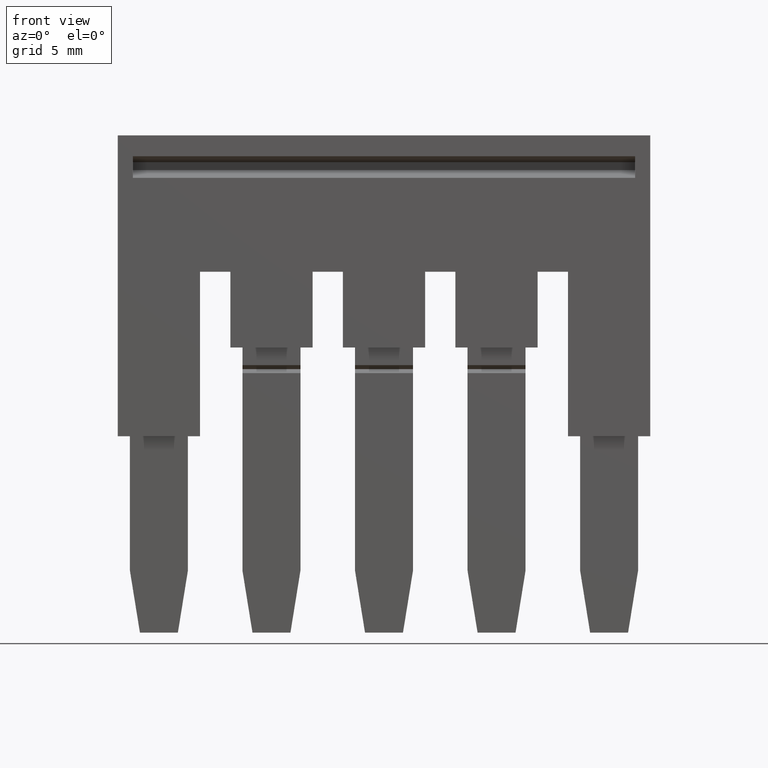
[diagram: clean part render]
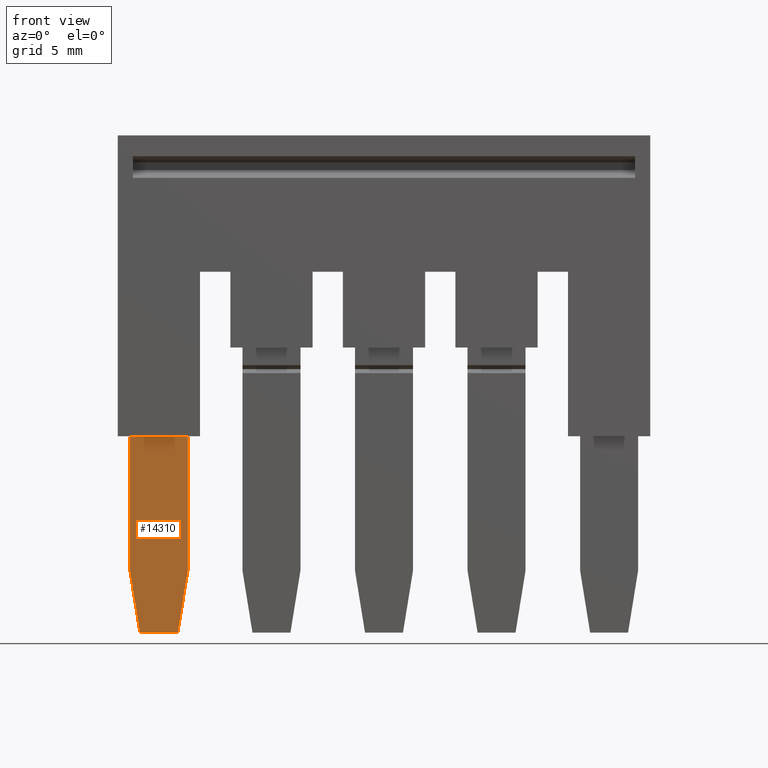
[diagram: same view with one face highlighted and labeled with its STEP entity id]
A machine part, front view. The second image highlights one B-rep face of the part: STEP entity #14310.
In plain terms, the highlighted planar face has unit normal (-0, -1, -0).
Its self-contained STEP definition (entity closure, byte-faithful):
#12070=CARTESIAN_POINT('',(3.30716722169511,-22.7750000000004,
37.0000000009616));
#12080=VERTEX_POINT('',#12070);
#12110=CARTESIAN_POINT('',(3.30716722169511,-22.7750000000004,41.874984)
);
#12120=DIRECTION('',(-1.22464679914735E-16,0.,1.));
#12130=VECTOR('',#12120,1.);
#12140=LINE('',#12110,#12130);
#12150=CARTESIAN_POINT('',(3.30716722169511,-22.7750000000004,
34.3200000009627));
#12160=VERTEX_POINT('',#12150);
#12170=EDGE_CURVE('',#12160,#12080,#12140,.T.);
#12780=CARTESIAN_POINT('',(3.30716722169511,-31.8499999999906,
34.7831890515862));
#12790=VERTEX_POINT('',#12780);
#12820=CARTESIAN_POINT('',(3.30716722169511,-31.8500000001177,41.874984)
);
#12830=DIRECTION('',(1.22464679914155E-16,1.79170101017188E-11,-1.));
#12840=VECTOR('',#12830,1.);
#12850=LINE('',#12820,#12840);
#12860=CARTESIAN_POINT('',(3.30716722169511,-31.8500000000221,
36.536810950333));
#12870=VERTEX_POINT('',#12860);
#12880=EDGE_CURVE('',#12870,#12790,#12850,.T.);
#13150=CARTESIAN_POINT('',(3.30716722169511,-28.980742062475,
37.0000000009616));
#13160=VERTEX_POINT('',#13150);
#13280=CARTESIAN_POINT('',(3.30716722169511,-12.305124,39.6919725831152)
);
#13290=DIRECTION('',(1.38777878078145E-17,-0.987219178105449,
-0.159368423411924));
#13300=VECTOR('',#13290,1.);
#13310=LINE('',#13280,#13300);
#13320=EDGE_CURVE('',#13160,#12870,#13310,.T.);
#13570=CARTESIAN_POINT('',(3.30716722169511,-12.305124,37.0000000009616)
);
#13580=DIRECTION('',(4.93038065763132E-32,-1.,-2.3789721411555E-16));
#13590=VECTOR('',#13580,1.);
#13600=LINE('',#13570,#13590);
#13610=EDGE_CURVE('',#12080,#13160,#13600,.T.);
#14060=CARTESIAN_POINT('',(3.30716722169511,-28.3020042035837,
36.6729573866517));
#14070=DIRECTION('',(-1.,-0.,-1.22464679914735E-16));
#14080=DIRECTION('',(0.,-1.,0.));
#14090=AXIS2_PLACEMENT_3D('',#14060,#14070,#14080);
#14100=PLANE('',#14090);
#14110=ORIENTED_EDGE('',*,*,#12880,.F.);
#14120=CARTESIAN_POINT('',(3.30716722169511,-12.305124,31.6280274188091)
);
#14130=DIRECTION('',(1.38777878078145E-17,0.987219178105449,
-0.159368423411924));
#14140=VECTOR('',#14130,1.);
#14150=LINE('',#14120,#14140);
#14160=CARTESIAN_POINT('',(3.30716722169511,-28.9807420624754,
34.3200000009627));
#14170=VERTEX_POINT('',#14160);
#14180=EDGE_CURVE('',#12790,#14170,#14150,.T.);
#14190=ORIENTED_EDGE('',*,*,#14180,.F.);
#14200=CARTESIAN_POINT('',(3.30716722169511,-12.305124,34.3200000009627)
);
#14210=DIRECTION('',(4.93038065763132E-32,1.,-2.3789721411555E-16));
#14220=VECTOR('',#14210,1.);
#14230=LINE('',#14200,#14220);
#14240=EDGE_CURVE('',#14170,#12160,#14230,.T.);
#14250=ORIENTED_EDGE('',*,*,#14240,.F.);
#14260=ORIENTED_EDGE('',*,*,#12170,.F.);
#14270=ORIENTED_EDGE('',*,*,#13610,.F.);
#14280=ORIENTED_EDGE('',*,*,#13320,.F.);
#14290=EDGE_LOOP('',(#14280,#14270,#14260,#14250,#14190,#14110));
#14300=FACE_OUTER_BOUND('',#14290,.T.);
#14310=ADVANCED_FACE('',(#14300),#14100,.T.);